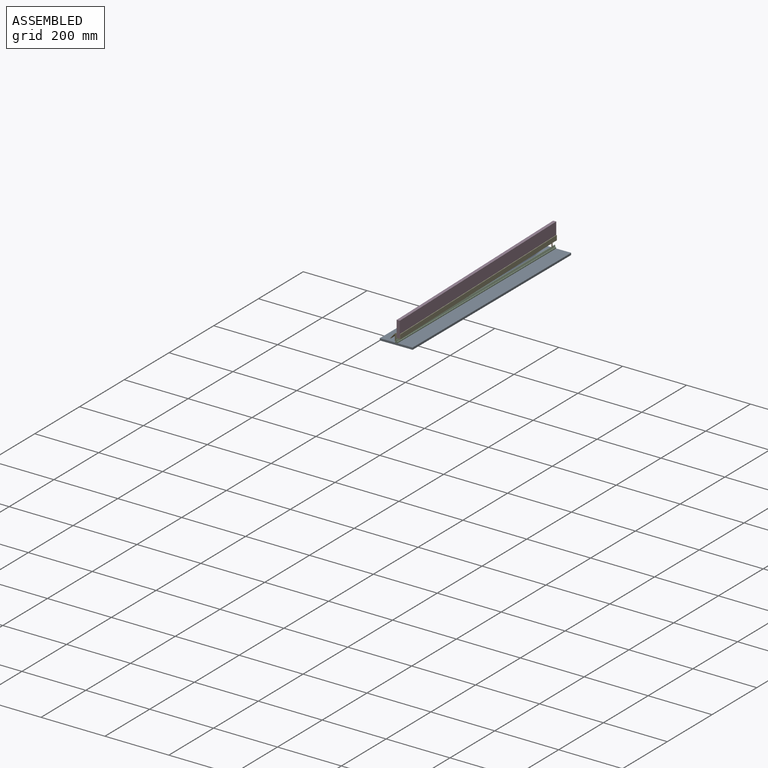
[diagram: assembled view]
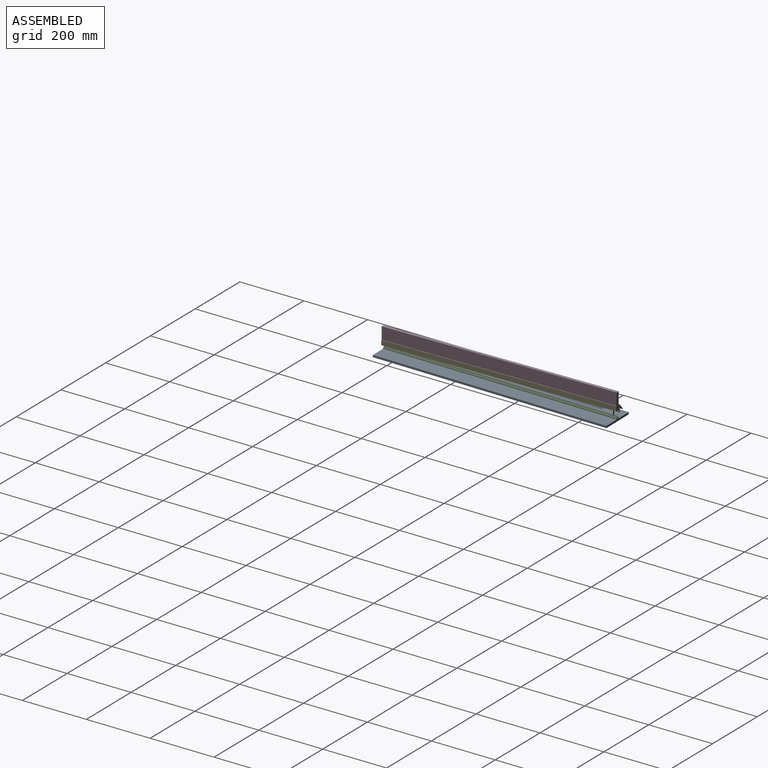
[diagram: assembled view, second angle]
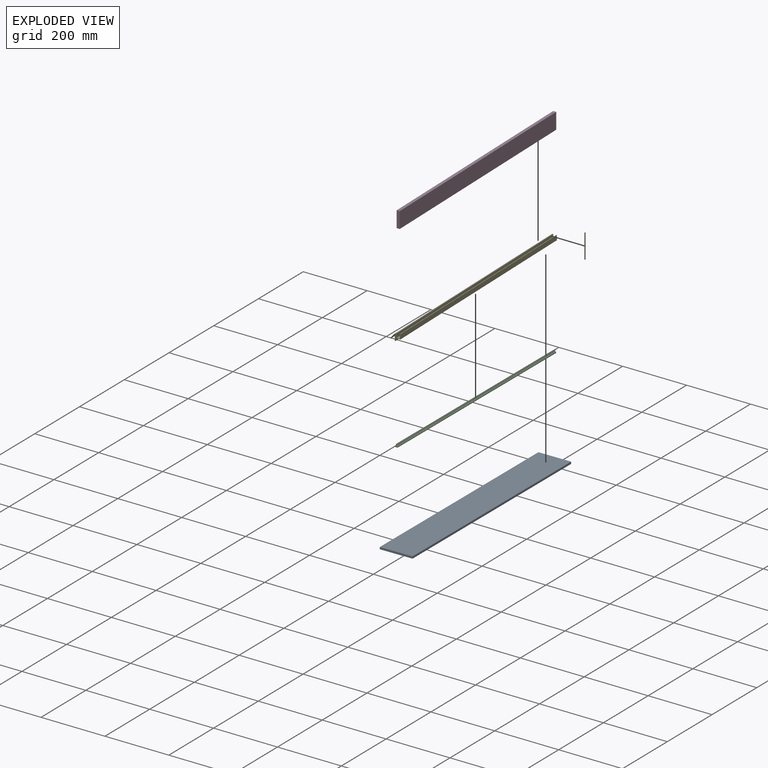
[diagram: exploded view]
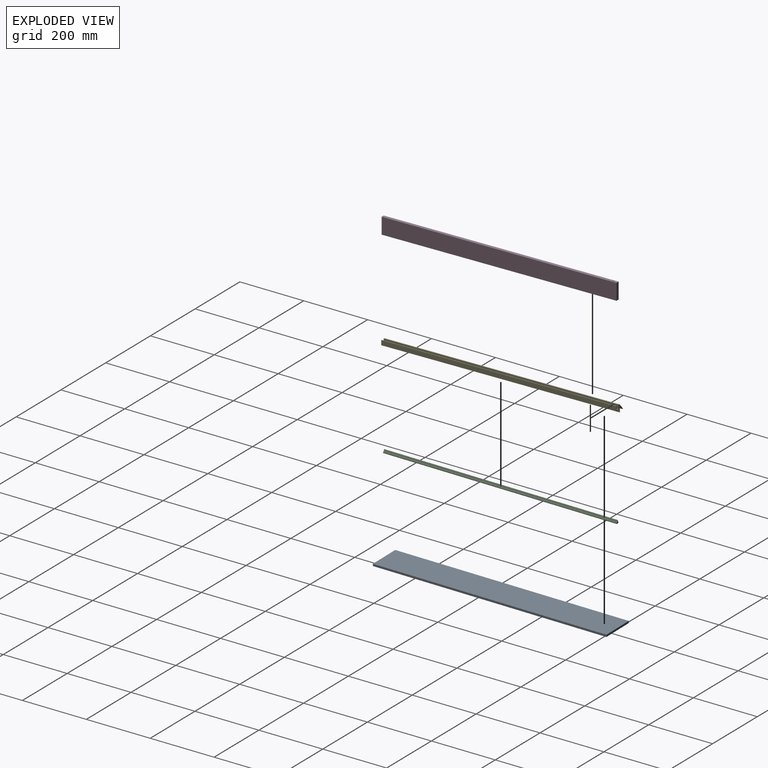
[diagram: exploded view, second angle]
ASSEMBLY  parts=5 mates=8
PART A: 20 faces, bbox 101.6x723.9x6.7 mm
  f0: plane 723.9x101.6mm, normal (0,0,1), area 73507.3mm2, adj f2,f3,f4,f5,f13,f14,f15,f16
  f1: plane 723.9x101.6mm, normal (0,0,-1), area 73507.3mm2, adj f2,f3,f4,f5,f6,f7,f8,f9
  f2: plane 723.9x6.35mm, normal (-1,0,0), area 4596.8mm2, adj f0,f1,f4,f5
  f3: plane 723.9x6.35mm, normal (1,0,0), area 4596.8mm2, adj f0,f1,f4,f5
  f4: plane 101.6x6.35mm, normal (0,1,0), area 645.2mm2, adj f0,f1,f2,f3
  f5: plane 101.6x6.35mm, normal (0,-1,0), area 645.2mm2, adj f0,f1,f2,f3
  f6: plane 6.08x0.14mm, normal (0,-1,0.02), area 0.9mm2, adj f1,f7,f9,f10
  f7: plane 6.73x0.25mm, normal (-1,0,0), area 1.3mm2, adj f1,f6,f8,f10
  f8: plane 6.08x0.25mm, normal (0,1,-0.02), area 1.5mm2, adj f1,f7,f9,f10
  f9: plane 6.73x0.25mm, normal (1,0,0), area 1.3mm2, adj f1,f6,f8,f10
  f10: plane 6.73x6.08mm, normal (0,-0.02,-1), area 35.8mm2, adj f6,f7,f8,f9,f11
  f11: cylinder r=1.27mm len=2.54mm, axis (0,-0.02,-1), area 1.5mm2, adj f10,f12
  f12: plane 2.54x2.54mm, normal (0,0,-1), area 5.1mm2, adj f11
  f13: plane 6.73x0.11mm, normal (1,0,0), area 0.4mm2, adj f0,f14,f16,f18
  f14: plane 6.08x0.01mm, normal (0,1,-0.02), area 0mm2, adj f0,f13,f15,f18
  f15: plane 6.73x0.11mm, normal (-1,0,0), area 0.4mm2, adj f0,f14,f16,f18
  f16: plane 6.08x0.11mm, normal (0,-1,0.02), area 0.7mm2, adj f0,f13,f15,f18
  f17: cylinder r=1.27mm len=2.54mm, axis (0,-0.02,-1), area 0.5mm2, adj f18,f19
  f18: plane 6.73x6.08mm, normal (0,0.02,1), area 35.8mm2, adj f13,f14,f15,f16,f17
  f19: plane 2.54x2.54mm, normal (0,0,1), area 5.1mm2, adj f17
PART B: 3 faces, bbox 3.2x3.2x76.2 mm
  f0: cylinder r=1.59mm len=76.2mm, axis (0,0,-1), area 760.1mm2, adj f1,f2
  f1: plane 3.18x3.18mm, normal (0,0,1), area 7.9mm2, adj f0
  f2: plane 3.18x3.18mm, normal (0,0,-1), area 7.9mm2, adj f0
PART C: 10 faces, bbox 8x723.9x9.5 mm
  f0: plane 723.9x3.18mm, normal (-1,0,0), area 2298.4mm2, adj f1,f7,f8,f9
  f1: plane 723.9x7.95mm, normal (0,0,-1), area 5755.1mm2, adj f0,f2,f8,f9
  f2: plane 723.9x3.18mm, normal (1,0,0), area 2298.4mm2, adj f1,f3,f8,f9
  f3: plane 723.9x2.23mm, normal (0,0,1), area 1614.9mm2, adj f2,f4,f8,f9
  f4: plane 723.9x6.35mm, normal (0.97,0,0.25), area 4742.2mm2, adj f3,f5,f8,f9
  f5: plane 723.9x0.88mm, normal (0,0,1), area 635.7mm2, adj f4,f6,f8,f9
  f6: plane 723.9x6.35mm, normal (-0.97,0,0.24), area 4733.6mm2, adj f5,f7,f8,f9
  f7: plane 723.9x1.67mm, normal (0,0,1), area 1209.1mm2, adj f0,f6,f8,f9
  f8: plane 9.53x7.95mm, normal (0,1,0), area 40.9mm2, adj f0,f1,f2,f3,f4,f5,f6,f7
  f9: plane 9.53x7.95mm, normal (0,-1,0), area 40.9mm2, adj f0,f1,f2,f3,f4,f5,f6,f7
PART D: 7 faces, bbox 9.5x723.9x50.5 mm
  f0: plane 723.9x9.53mm, normal (0,0,1), area 6887.2mm2, adj f1,f3,f4,f5,f6
  f1: plane 50.55x9.53mm, normal (0,-1,0), area 481.5mm2, adj f0,f2,f4,f5
  f2: plane 723.9x9.53mm, normal (0,0,-1), area 6887.2mm2, adj f1,f3,f4,f5,f6
  f3: plane 50.55x9.53mm, normal (0,1,0), area 481.5mm2, adj f0,f2,f4,f5
  f4: plane 723.9x50.55mm, normal (1,0,0), area 36590.2mm2, adj f0,f1,f2,f3
  f5: plane 723.9x50.55mm, normal (-1,0,0), area 36590.2mm2, adj f0,f1,f2,f3
  f6: cylinder r=1.59mm len=50.55mm, axis (0,0,1), area 504.2mm2, adj f0,f2
PART E: 19 faces, bbox 31.4x723.9x23.3 mm
  f0: plane 723.9x1.91mm, normal (0,0,1), area 1379mm2, adj f1,f16,f17,f18
  f1: plane 723.9x12.7mm, normal (-1,0,0), area 9193.5mm2, adj f0,f2,f17,f18
  f2: plane 723.9x9.53mm, normal (0,0,1), area 6895.1mm2, adj f1,f3,f17,f18
  f3: plane 723.9x12.7mm, normal (1,0,0), area 9193.5mm2, adj f2,f4,f17,f18
  f4: plane 723.9x3.06mm, normal (0,0,1), area 2212.3mm2, adj f3,f5,f17,f18
  f5: plane 723.9x3.74mm, normal (-0.65,0,0.76), area 3566.3mm2, adj f4,f6,f17,f18
  f6: plane 723.9x15.37mm, normal (-0.76,0,0.65), area 14642.9mm2, adj f5,f7,f17,f18
  f7: plane 723.9x1.25mm, normal (-0.65,0,-0.76), area 1191.1mm2, adj f6,f8,f17,f18
  f8: plane 723.9x15.13mm, normal (0.76,0,-0.65), area 14411.1mm2, adj f7,f9,f17,f18
  f9: plane 723.9x18.82mm, normal (-1,0,0), area 13625.5mm2, adj f8,f10,f17,f18
  f10: plane 723.9x1.52mm, normal (0,0,-1), area 1103.2mm2, adj f9,f11,f17,f18
  f11: plane 723.9x19.8mm, normal (1,0,0), area 14330mm2, adj f10,f12,f17,f18
  f12: plane 723.9x1.16mm, normal (0.6,0,-0.8), area 1052.1mm2, adj f11,f13,f17,f18
  f13: plane 723.9x0.82mm, normal (0,0,-1), area 590.4mm2, adj f12,f14,f17,f18
  f14: plane 723.9x11.94mm, normal (-1,0,0), area 8641.9mm2, adj f13,f15,f17,f18
  f15: plane 723.9x13.7mm, normal (0,0,-1), area 9916.2mm2, adj f14,f16,f17,f18
  f16: plane 723.9x14.61mm, normal (1,0,0), area 10572.6mm2, adj f0,f15,f17,f18
  f17: plane 31.39x23.34mm, normal (0,1,0), area 151.4mm2, adj f0,f1,f2,f3,f4,f5,f6,f7
  f18: plane 31.39x23.34mm, normal (0,-1,0), area 151.4mm2, adj f0,f1,f2,f3,f4,f5,f6,f7
PLACE A rot(axis=(0,-0.01,-1),179.2deg) t=(-5.51,18.93,0.28)mm
PLACE B t=(-5.33,6.14,0.54)mm fixed
PLACE C rot(axis=(-0.73,-0.01,0.68),1.2deg) t=(4.76,-704.81,11.32)mm
PLACE D rot(axis=(0,0,1),1.3deg) t=(-2.02,-343.13,0.54)mm
PLACE E rot(axis=(0,0,1),1.3deg) t=(11.11,-704.84,26.19)mm
MATE planar B.f0 <-> D.f0  axis (0,0,1) through (-5.33,6.14,76.74)mm
MATE planar C.f9 <-> A.f4  axis (0.01,-1,0.02) through (6.85,-704.73,14.5)mm
MATE cylindrical A.f11 <-> B.f0  axis (0,0,1) through (-5.33,6.14,0.54)mm
MATE cylindrical D.f6 <-> B.f0  axis (0,0,1) through (-5.33,6.14,76.74)mm
MATE planar B.f0 <-> A.f18  axis (0,0,-1) through (-5.33,6.14,0.54)mm
MATE planar C.f1 <-> A.f0  axis (0,-0.02,-1) through (9.08,-704.75,11.32)mm
MATE planar E.f3 <-> D.f5  axis (1,0.02,0) through (-2.02,-343.1,32.54)mm
MATE planar E.f2 <-> D.f2  axis (0,0,1) through (2.74,-342.99,26.19)mm
